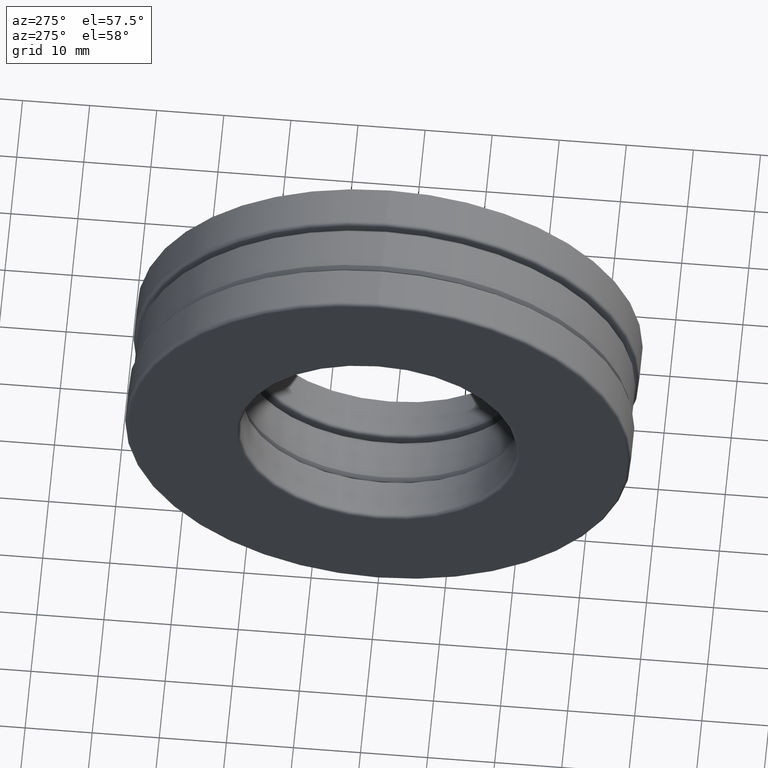
[diagram: clean part render]
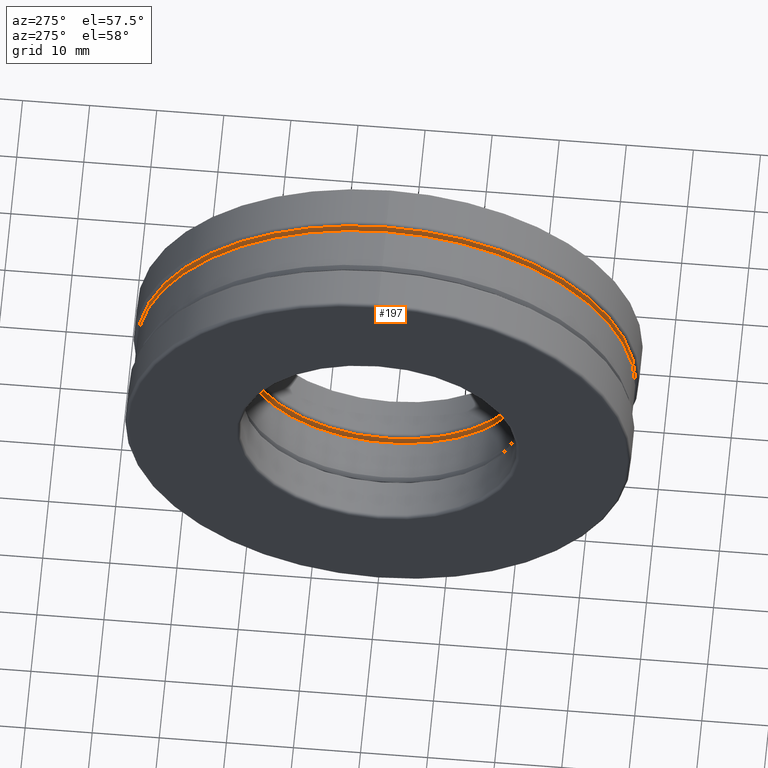
[diagram: same view with one face highlighted and labeled with its STEP entity id]
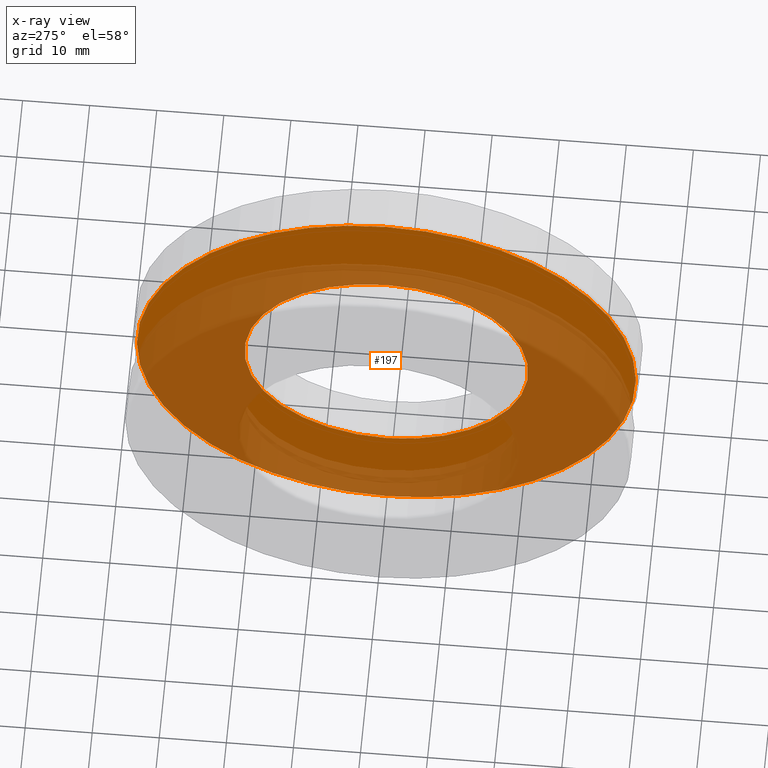
[diagram: x-ray of the same camera — body ghosted, the highlighted face saturated]
A machine part, auxiliary view. The second image highlights one B-rep face of the part: STEP entity #197.
The next image is the same camera in x-ray: the body ghosted, the highlighted face saturated — about 62% of this face is hidden behind the body in this view.
In plain terms, the highlighted planar face has unit normal (1, 0, 0).
Its self-contained STEP definition (entity closure, byte-faithful):
#39 = CIRCLE ( 'NONE', #876, 0.8325000000000000200 ) ;
#120 = DIRECTION ( 'NONE',  ( 1.000000000000000000, 0.0000000000000000000, 0.0000000000000000000 ) ) ;
#154 = CARTESIAN_POINT ( 'NONE',  ( 0.1560000000000000300, 0.0000000000000000000, 0.0000000000000000000 ) ) ;
#169 = VERTEX_POINT ( 'NONE', #695 ) ;
#193 = EDGE_LOOP ( 'NONE', ( #506 ) ) ;
#197 = ADVANCED_FACE ( 'NONE', ( #1295, #1325 ), #587, .F. ) ;
#240 = EDGE_CURVE ( 'NONE', #1006, #1006, #1052, .T. ) ;
#355 = CARTESIAN_POINT ( 'NONE',  ( 0.1560000000000000000, 0.0000000000000000000, 0.0000000000000000000 ) ) ;
#382 = DIRECTION ( 'NONE',  ( -1.000000000000000000, -0.0000000000000000000, -0.0000000000000000000 ) ) ;
#417 = EDGE_CURVE ( 'NONE', #169, #169, #39, .T. ) ;
#506 = ORIENTED_EDGE ( 'NONE', *, *, #240, .T. ) ;
#587 = PLANE ( 'NONE',  #966 ) ;
#609 = EDGE_LOOP ( 'NONE', ( #1084 ) ) ;
#695 = CARTESIAN_POINT ( 'NONE',  ( 0.1560000000000000300, 0.0000000000000000000, 0.8325000000000000200 ) ) ;
#715 = DIRECTION ( 'NONE',  ( 0.0000000000000000000, 0.0000000000000000000, -1.000000000000000000 ) ) ;
#785 = CARTESIAN_POINT ( 'NONE',  ( 0.1560000000000000000, 0.0000000000000000000, 1.464375000000000400 ) ) ;
#817 = DIRECTION ( 'NONE',  ( 0.0000000000000000000, 0.0000000000000000000, 1.000000000000000000 ) ) ;
#876 = AXIS2_PLACEMENT_3D ( 'NONE', #154, #382, #1055 ) ;
#928 = DIRECTION ( 'NONE',  ( -1.000000000000000000, -0.0000000000000000000, -0.0000000000000000000 ) ) ;
#966 = AXIS2_PLACEMENT_3D ( 'NONE', #1264, #120, #715 ) ;
#1006 = VERTEX_POINT ( 'NONE', #785 ) ;
#1023 = AXIS2_PLACEMENT_3D ( 'NONE', #355, #928, #817 ) ;
#1052 = CIRCLE ( 'NONE', #1023, 1.464375000000000400 ) ;
#1055 = DIRECTION ( 'NONE',  ( 0.0000000000000000000, 0.0000000000000000000, 1.000000000000000000 ) ) ;
#1084 = ORIENTED_EDGE ( 'NONE', *, *, #417, .F. ) ;
#1264 = CARTESIAN_POINT ( 'NONE',  ( 0.1560000000000000000, 8.430628823177546200E-018, 0.0000000000000000000 ) ) ;
#1295 = FACE_BOUND ( 'NONE', #609, .T. ) ;
#1325 = FACE_OUTER_BOUND ( 'NONE', #193, .T. ) ;